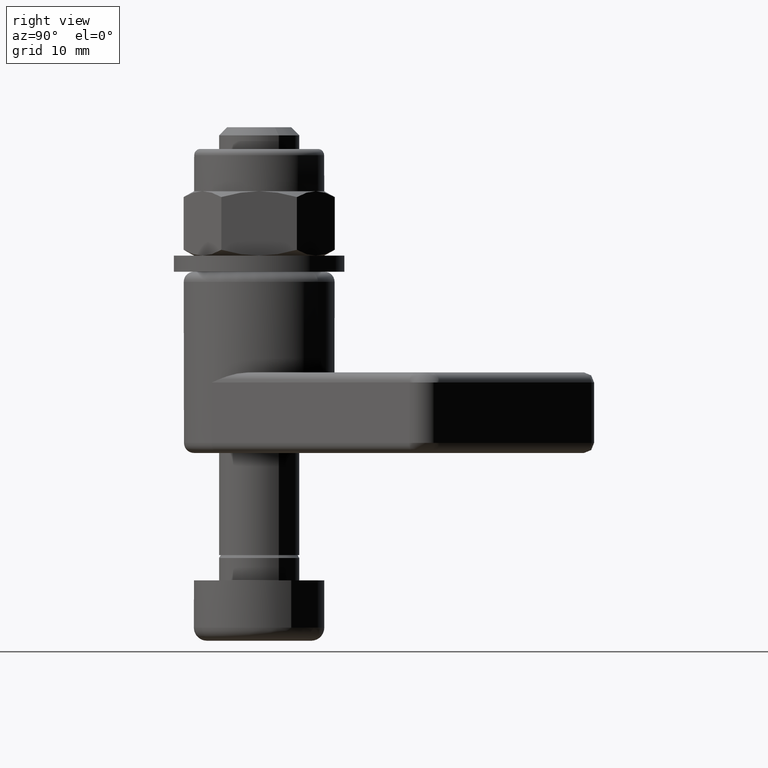
[diagram: clean part render]
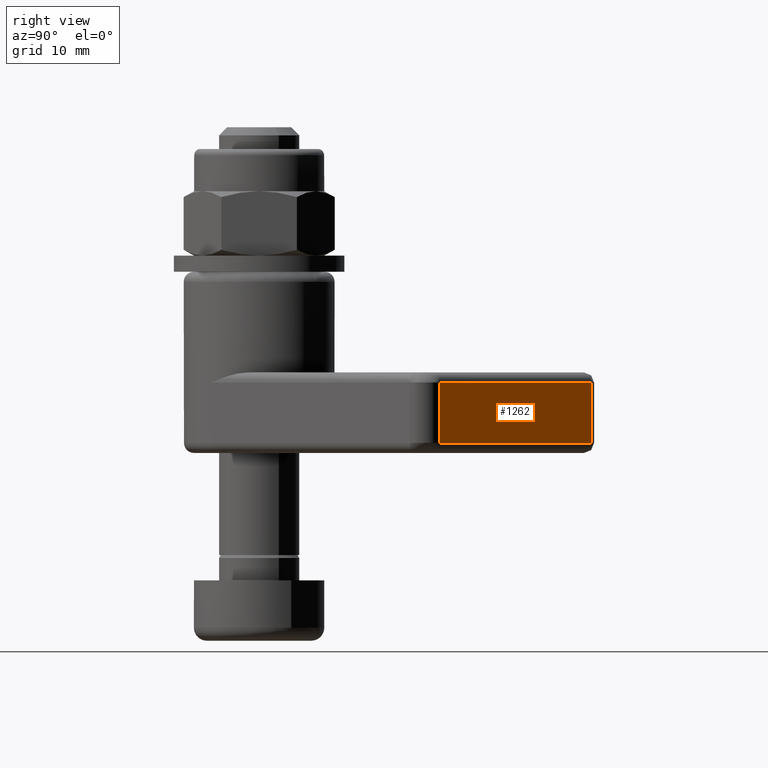
[diagram: same view with one face highlighted and labeled with its STEP entity id]
A machine part, right view. The second image highlights one B-rep face of the part: STEP entity #1262.
In plain terms, the highlighted planar face has unit normal (-0.5111, -0.8595, -0).
Its self-contained STEP definition (entity closure, byte-faithful):
#133=LINE('',#2273,#198);
#143=LINE('',#2345,#208);
#145=LINE('',#2380,#210);
#150=LINE('',#2408,#215);
#198=VECTOR('',#1805,10.);
#208=VECTOR('',#1851,10.);
#210=VECTOR('',#1877,10.);
#215=VECTOR('',#1894,10.);
#329=FACE_OUTER_BOUND('',#416,.T.);
#416=EDGE_LOOP('',(#1107,#1108,#1109,#1110));
#580=VERTEX_POINT('',#2263);
#583=VERTEX_POINT('',#2270);
#598=VERTEX_POINT('',#2343);
#603=VERTEX_POINT('',#2377);
#737=EDGE_CURVE('',#583,#580,#133,.T.);
#761=EDGE_CURVE('',#580,#598,#143,.T.);
#770=EDGE_CURVE('',#598,#603,#145,.T.);
#778=EDGE_CURVE('',#603,#583,#150,.T.);
#1107=ORIENTED_EDGE('',*,*,#737,.T.);
#1108=ORIENTED_EDGE('',*,*,#761,.T.);
#1109=ORIENTED_EDGE('',*,*,#770,.T.);
#1110=ORIENTED_EDGE('',*,*,#778,.T.);
#1182=PLANE('',#1539);
#1262=ADVANCED_FACE('',(#329),#1182,.F.);
#1539=AXIS2_PLACEMENT_3D('',#2409,#1895,#1896);
#1805=DIRECTION('',(0.141421356237309,0.989949493661167,0.));
#1851=DIRECTION('',(0.,0.,-1.));
#1877=DIRECTION('',(-0.141421356237309,-0.989949493661167,0.));
#1894=DIRECTION('',(0.,0.,1.));
#1895=DIRECTION('center_axis',(0.989949493661167,-0.141421356237309,0.));
#1896=DIRECTION('ref_axis',(-0.141421356237309,-0.989949493661167,0.));
#2263=CARTESIAN_POINT('',(-22.9938200872422,24.0432593893047,-1.));
#2270=CARTESIAN_POINT('',(-27.1738796125036,-5.21715728752538,-1.));
#2273=CARTESIAN_POINT('',(-24.2000000039073,15.5999999726486,-1.));
#2343=CARTESIAN_POINT('',(-22.9938200872422,24.0432593893047,-7.));
#2345=CARTESIAN_POINT('',(-22.9938200872422,24.0432593893047,0.));
#2377=CARTESIAN_POINT('',(-27.1738796125036,-5.21715728752538,-7.));
#2380=CARTESIAN_POINT('',(-24.2000000039073,15.5999999726486,-7.));
#2408=CARTESIAN_POINT('',(-27.1738796125036,-5.21715728752538,0.));
#2409=CARTESIAN_POINT('Origin',(-22.5,27.5,0.));